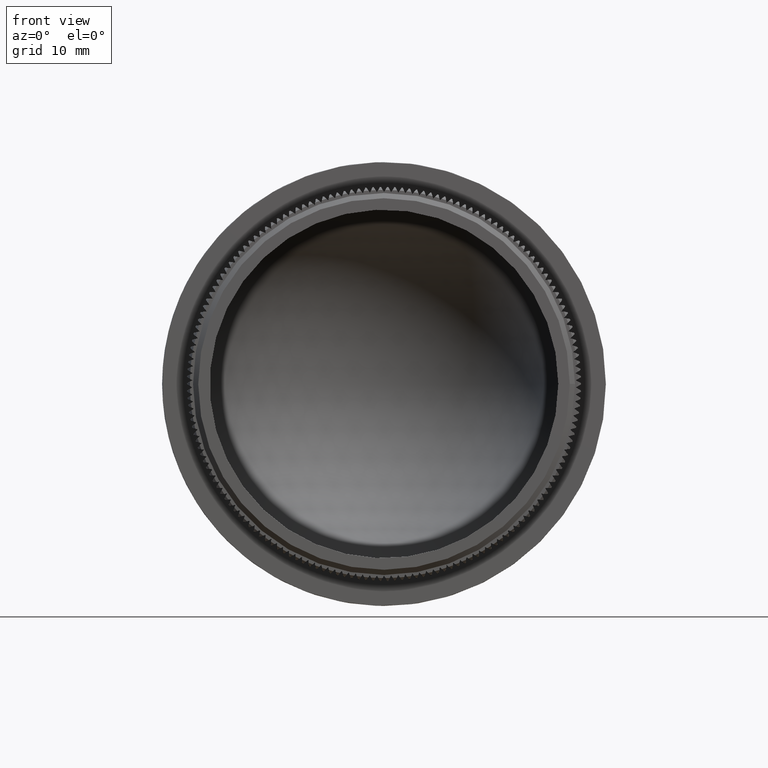
[diagram: clean part render]
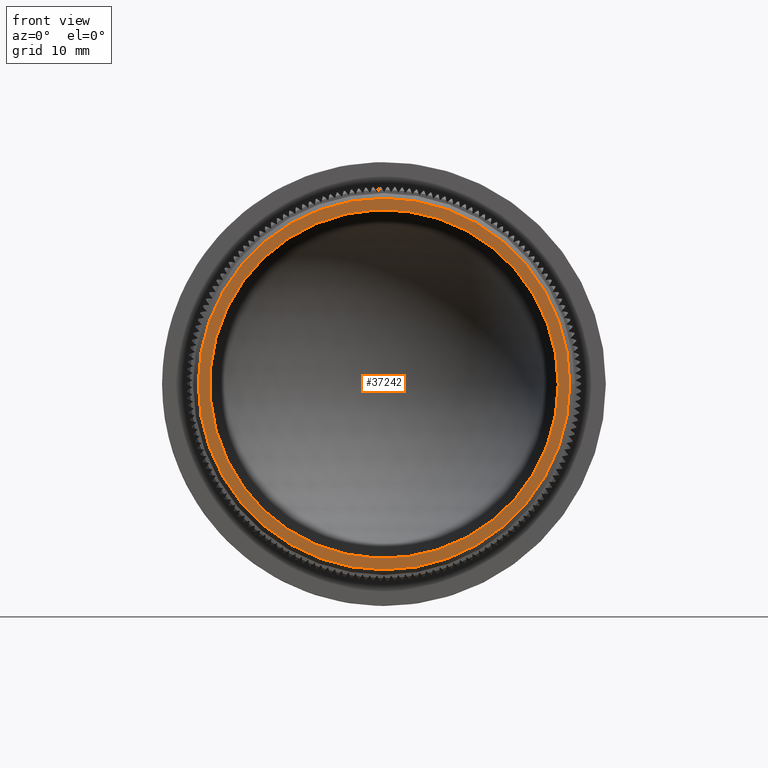
[diagram: same view with one face highlighted and labeled with its STEP entity id]
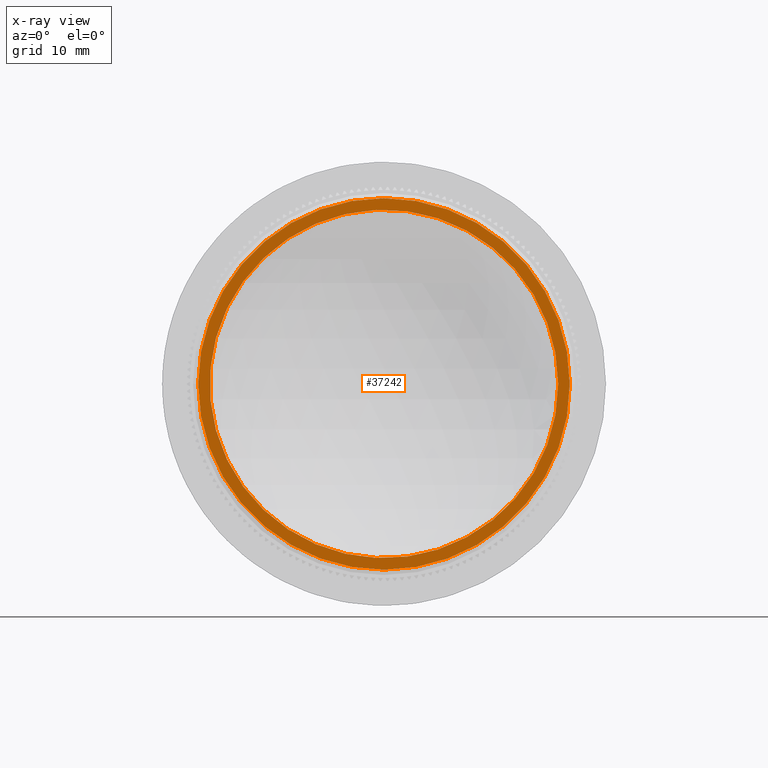
[diagram: x-ray of the same camera — body ghosted, the highlighted face saturated]
A machine part, front view. The second image highlights one B-rep face of the part: STEP entity #37242.
The next image is the same camera in x-ray: the body ghosted, the highlighted face saturated — about 0% of this face is hidden behind the body in this view.
In plain terms, the highlighted planar face has unit normal (-0, -1, 0).
Its self-contained STEP definition (entity closure, byte-faithful):
#3088 = DIRECTION ( 'NONE',  ( 1.000000000000000000, -4.511395019478391376E-16, 0.000000000000000000 ) ) ;
#3552 = FACE_BOUND ( 'NONE', #39735, .T. ) ;
#6581 = CARTESIAN_POINT ( 'NONE',  ( 18.25000000000000000, -5.201156854474262730E-16, 0.000000000000000000 ) ) ;
#7878 = CIRCLE ( 'NONE', #35068, 16.65000000000001634 ) ;
#9150 = AXIS2_PLACEMENT_3D ( 'NONE', #6581, #18438, #3088 ) ;
#9234 = CARTESIAN_POINT ( 'NONE',  ( -1.452669196272041349E-14, 7.713180225100643264E-15, 0.000000000000000000 ) ) ;
#9365 = DIRECTION ( 'NONE',  ( -4.511395019478391376E-16, -1.000000000000000000, -0.000000000000000000 ) ) ;
#15583 = PLANE ( 'NONE',  #9150 ) ;
#17119 = EDGE_LOOP ( 'NONE', ( #30579 ) ) ;
#18438 = DIRECTION ( 'NONE',  ( -4.511395019478391376E-16, -1.000000000000000000, 0.000000000000000000 ) ) ;
#22200 = CARTESIAN_POINT ( 'NONE',  ( -1.452669196272041349E-14, 6.938893903907228378E-15, 0.000000000000000000 ) ) ;
#22870 = FACE_OUTER_BOUND ( 'NONE', #17119, .T. ) ;
#25552 = DIRECTION ( 'NONE',  ( -4.511395019478391376E-16, -1.000000000000000000, -0.000000000000000000 ) ) ;
#26805 = AXIS2_PLACEMENT_3D ( 'NONE', #9234, #9365, #31168 ) ;
#28596 = VERTEX_POINT ( 'NONE', #37573 ) ;
#29027 = VERTEX_POINT ( 'NONE', #31228 ) ;
#30579 = ORIENTED_EDGE ( 'NONE', *, *, #30737, .T. ) ;
#30737 = EDGE_CURVE ( 'NONE', #28596, #28596, #37766, .T. ) ;
#30803 = EDGE_CURVE ( 'NONE', #29027, #29027, #7878, .T. ) ;
#31168 = DIRECTION ( 'NONE',  ( 1.000000000000000000, -4.511395019478391376E-16, 0.000000000000000000 ) ) ;
#31228 = CARTESIAN_POINT ( 'NONE',  ( 16.65000000000000213, -5.725788035243005307E-16, 0.000000000000000000 ) ) ;
#34411 = DIRECTION ( 'NONE',  ( 1.000000000000000000, -4.511395019478391376E-16, 0.000000000000000000 ) ) ;
#35068 = AXIS2_PLACEMENT_3D ( 'NONE', #22200, #25552, #34411 ) ;
#35716 = ORIENTED_EDGE ( 'NONE', *, *, #30803, .F. ) ;
#37242 = ADVANCED_FACE ( 'NONE', ( #22870, #3552 ), #15583, .T. ) ;
#37573 = CARTESIAN_POINT ( 'NONE',  ( 17.74999999999998579, -2.945459344735001468E-16, 0.000000000000000000 ) ) ;
#37766 = CIRCLE ( 'NONE', #26805, 17.75000000000000000 ) ;
#39735 = EDGE_LOOP ( 'NONE', ( #35716 ) ) ;